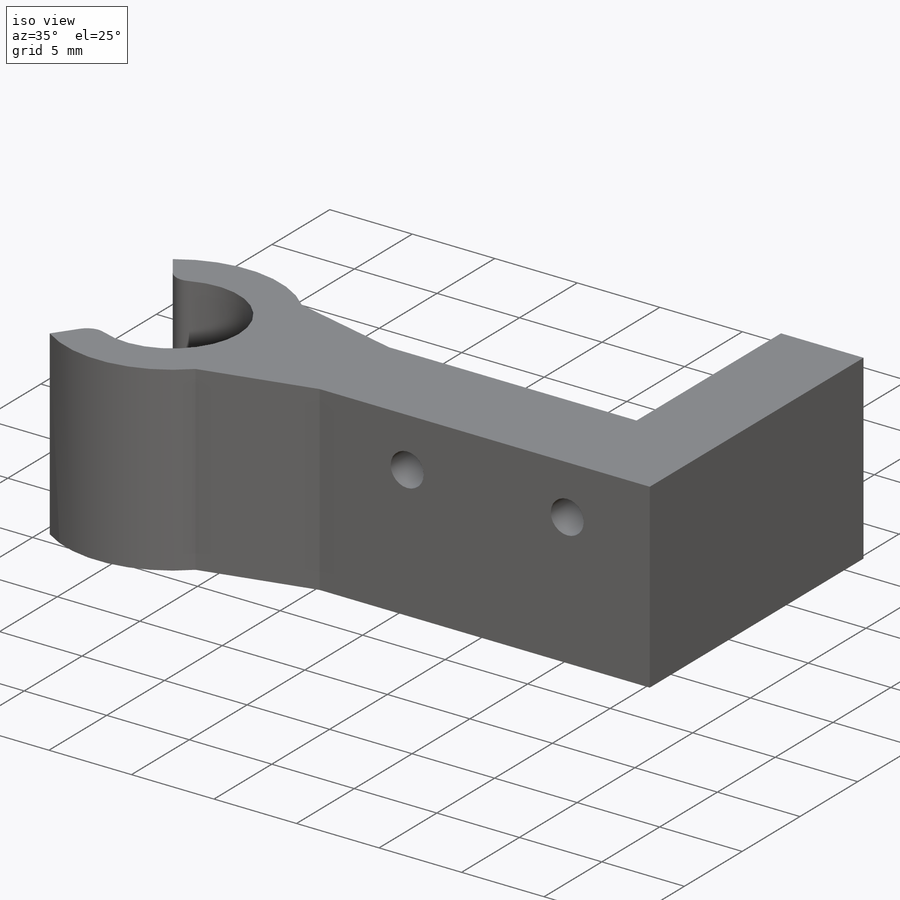
[diagram: iso view]
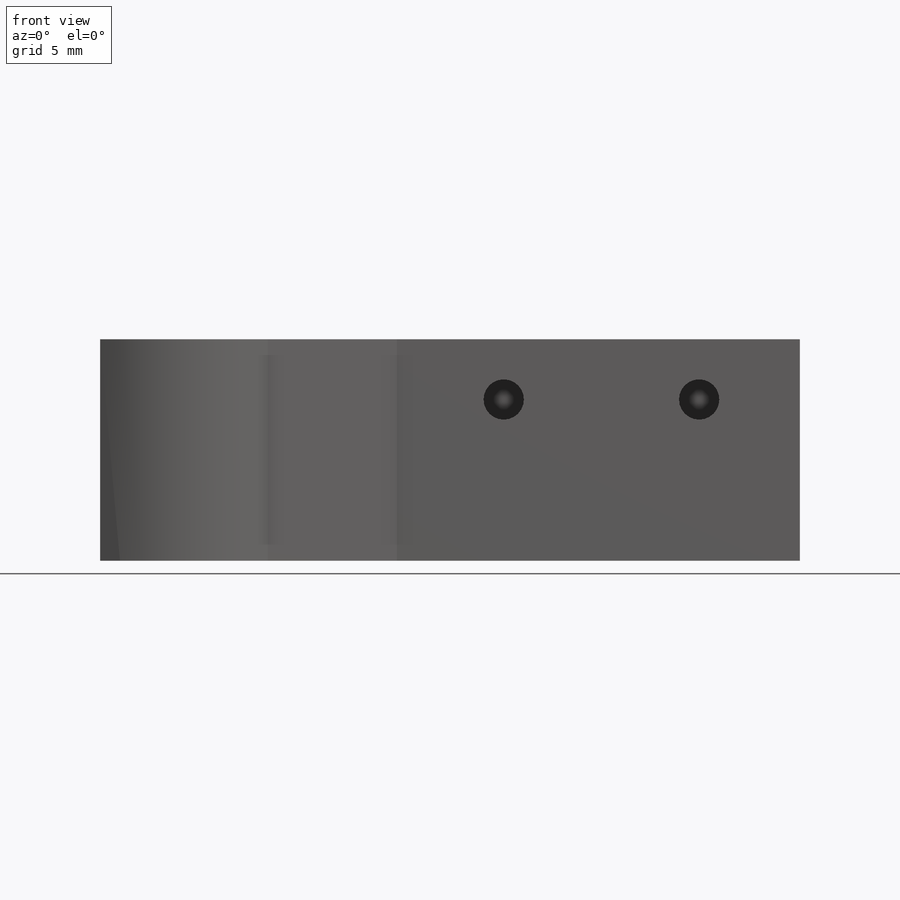
[diagram: front view]
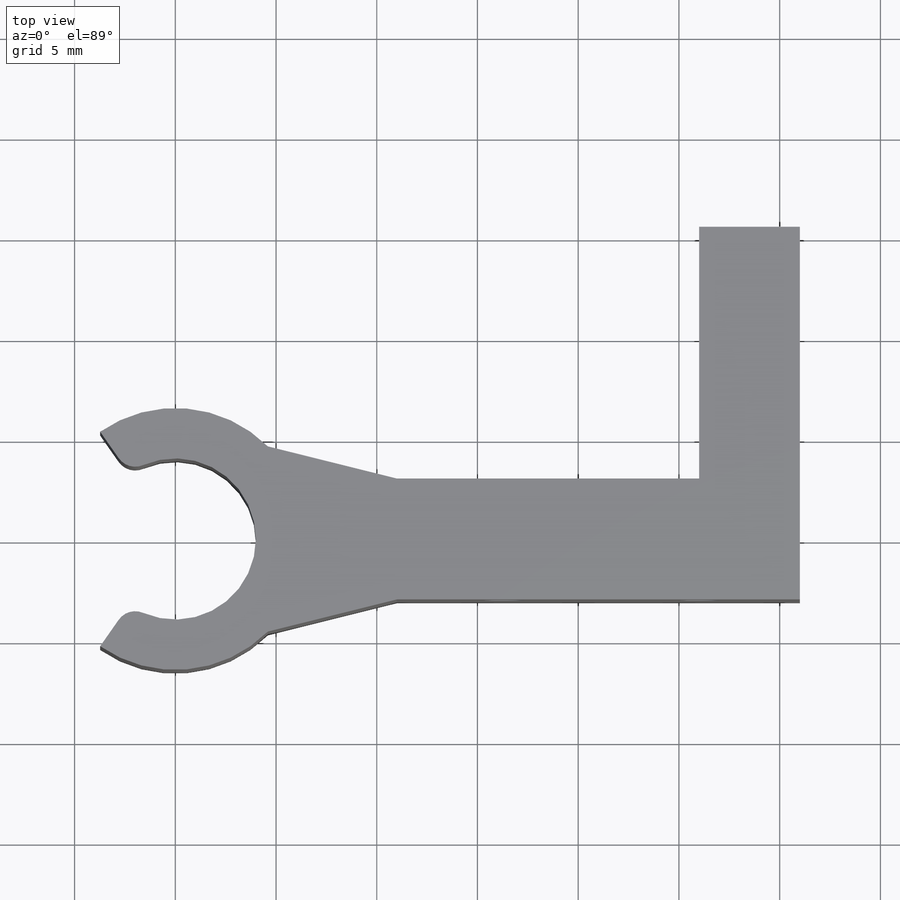
[diagram: top view]
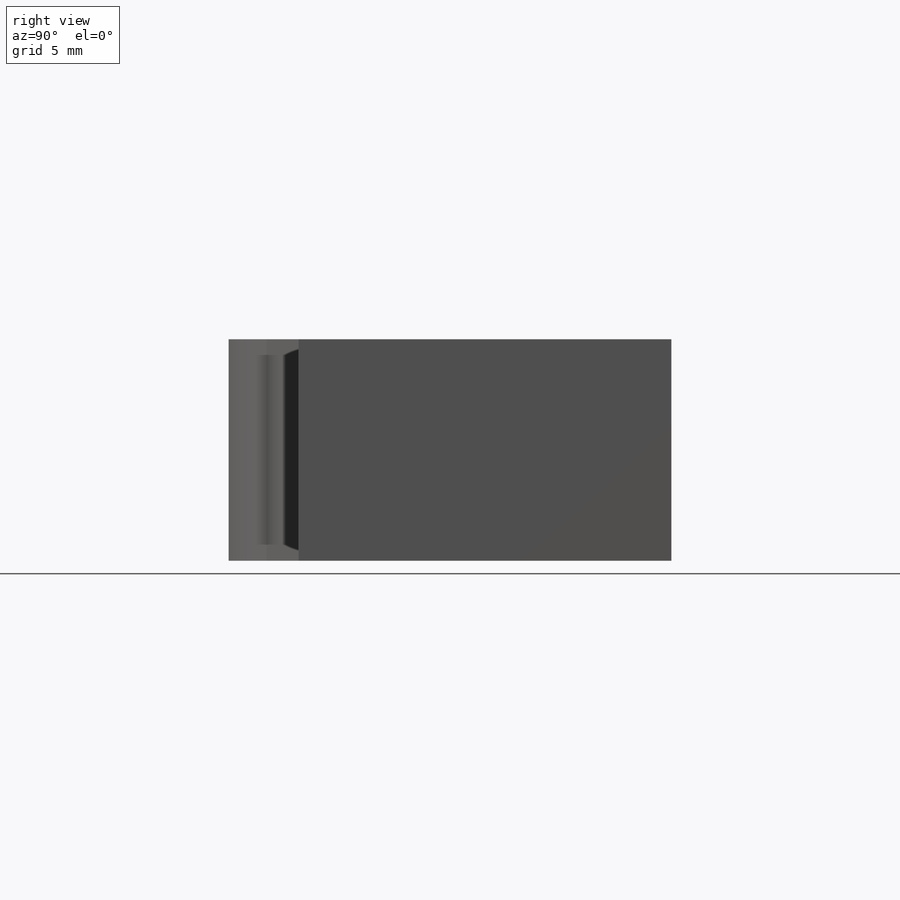
[diagram: right view]
SOLIDWORKS PART (.sldprt)
format: sldprt  version: not decoded by parser v0  size: 209,408 bytes
history: native  units: mm
features: plane x3, sketch x3, extrude x2, material x1, cut_extrude x1 (+10 scaffold rows collapsed)
feature tree (20):
  scaffold x10  (default folders/planes/origin — collapsed)
  material  "Matériau <non spécifié>"
  plane  "Plan de face"
  plane  "Plan de dessus"
  plane  "Plan de droite"
  sketch  "Esquisse1"  dims[c1.D1=8.0mm c1.D2=13.0mm c2.D1=4.0mm c2.D10=1.0mm c2.D3=~4.596194mm c3.D3=35.0deg c3.D4=6.5mm c4.D4=35.0deg c4.D5=7.0mm c4.D6=6.0mm c4.D7=20.0mm c4.D8=~4.596194mm c5.D8=45.0deg c5.D9=6.5mm c6.D9=45.0deg]
  extrude  "Boss.-Extru.1"  Depth=11mm
  sketch  "Esquisse2"  dims[D2=2.0mm D1=9.7mm D3=3.0mm D4=5.0mm]
  cut_extrude  "Enlèv. mat.-Extru.1"  Depth=4mm
  sketch  "Esquisse3"  dims[D1=5.0mm]
  extrude  "Boss.-Extru.2"  Depth=12.5mm
decode coverage: 6 of 6 modeling features carry decoded parameters
note: ~ marks probable driven/reference dimensions
note: suppression state not decoded; provenance and decode notes live in map.json
